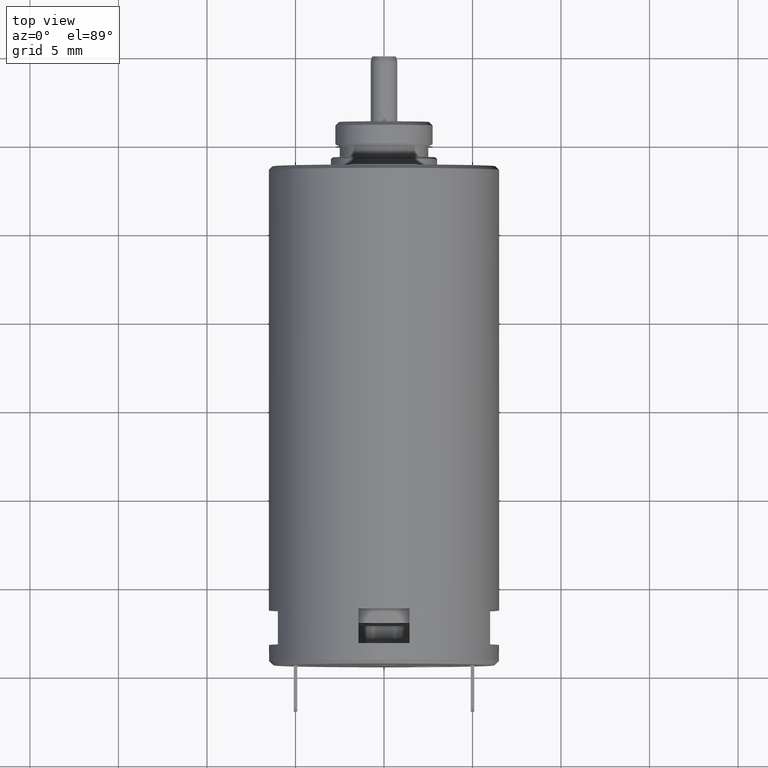
[diagram: clean part render]
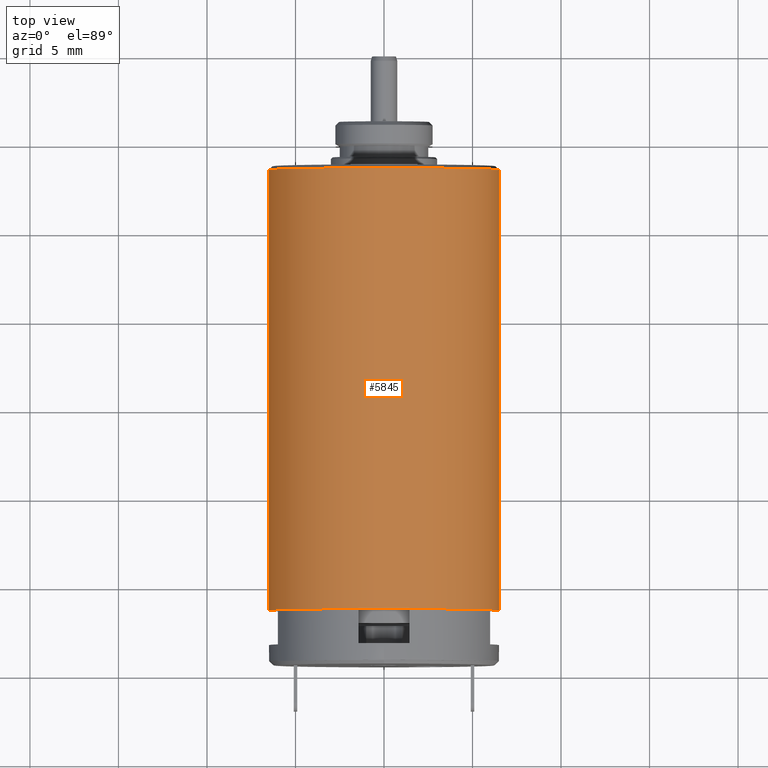
[diagram: same view with one face highlighted and labeled with its STEP entity id]
A machine part, top view. The second image highlights one B-rep face of the part: STEP entity #5845.
In plain terms, the highlighted cylindrical surface (partial cylindrical patch) has radius 6.5 mm, axis along (0, 1, 0).
Its self-contained STEP definition (entity closure, byte-faithful):
#2175=CARTESIAN_POINT('',(0.E0,-3.13E1,0.E0));
#2176=DIRECTION('',(0.E0,-1.E0,0.E0));
#2177=DIRECTION('',(1.E0,0.E0,0.E0));
#2178=AXIS2_PLACEMENT_3D('',#2175,#2176,#2177);
#2180=DIRECTION('',(0.E0,1.E0,0.E0));
#2181=VECTOR('',#2180,2.49E1);
#2182=CARTESIAN_POINT('',(-6.5E0,-3.13E1,0.E0));
#2183=LINE('',#2182,#2181);
#2184=CARTESIAN_POINT('',(0.E0,-6.4E0,0.E0));
#2185=DIRECTION('',(0.E0,1.E0,0.E0));
#2186=DIRECTION('',(-1.E0,0.E0,0.E0));
#2187=AXIS2_PLACEMENT_3D('',#2184,#2185,#2186);
#2189=DIRECTION('',(0.E0,-1.E0,0.E0));
#2190=VECTOR('',#2189,2.49E1);
#2191=CARTESIAN_POINT('',(6.5E0,-6.4E0,0.E0));
#2192=LINE('',#2191,#2190);
#2508=CARTESIAN_POINT('',(-6.5E0,-6.4E0,0.E0));
#2510=VERTEX_POINT('',#2508);
#2516=CARTESIAN_POINT('',(6.5E0,-6.4E0,0.E0));
#2518=VERTEX_POINT('',#2516);
#2567=CARTESIAN_POINT('',(6.5E0,-3.13E1,0.E0));
#2568=VERTEX_POINT('',#2567);
#2569=CARTESIAN_POINT('',(-6.5E0,-3.13E1,0.E0));
#2570=VERTEX_POINT('',#2569);
#5834=CARTESIAN_POINT('',(0.E0,-3.2865E1,0.E0));
#5835=DIRECTION('',(0.E0,1.E0,0.E0));
#5836=DIRECTION('',(1.E0,0.E0,0.E0));
#5837=AXIS2_PLACEMENT_3D('',#5834,#5835,#5836);
#5838=CYLINDRICAL_SURFACE('',#5837,6.5E0);
#5839=ORIENTED_EDGE('',*,*,#3122,.T.);
#5840=ORIENTED_EDGE('',*,*,#3112,.T.);
#5841=ORIENTED_EDGE('',*,*,#3083,.T.);
#5842=ORIENTED_EDGE('',*,*,#3109,.T.);
#5843=EDGE_LOOP('',(#5839,#5840,#5841,#5842));
#5844=FACE_OUTER_BOUND('',#5843,.F.);
#5845=ADVANCED_FACE('',(#5844),#5838,.T.);
#2179=CIRCLE('',#2178,6.5E0);
#2188=CIRCLE('',#2187,6.5E0);
#3083=EDGE_CURVE('',#2510,#2518,#2188,.T.);
#3109=EDGE_CURVE('',#2518,#2568,#2192,.T.);
#3112=EDGE_CURVE('',#2570,#2510,#2183,.T.);
#3122=EDGE_CURVE('',#2568,#2570,#2179,.T.);